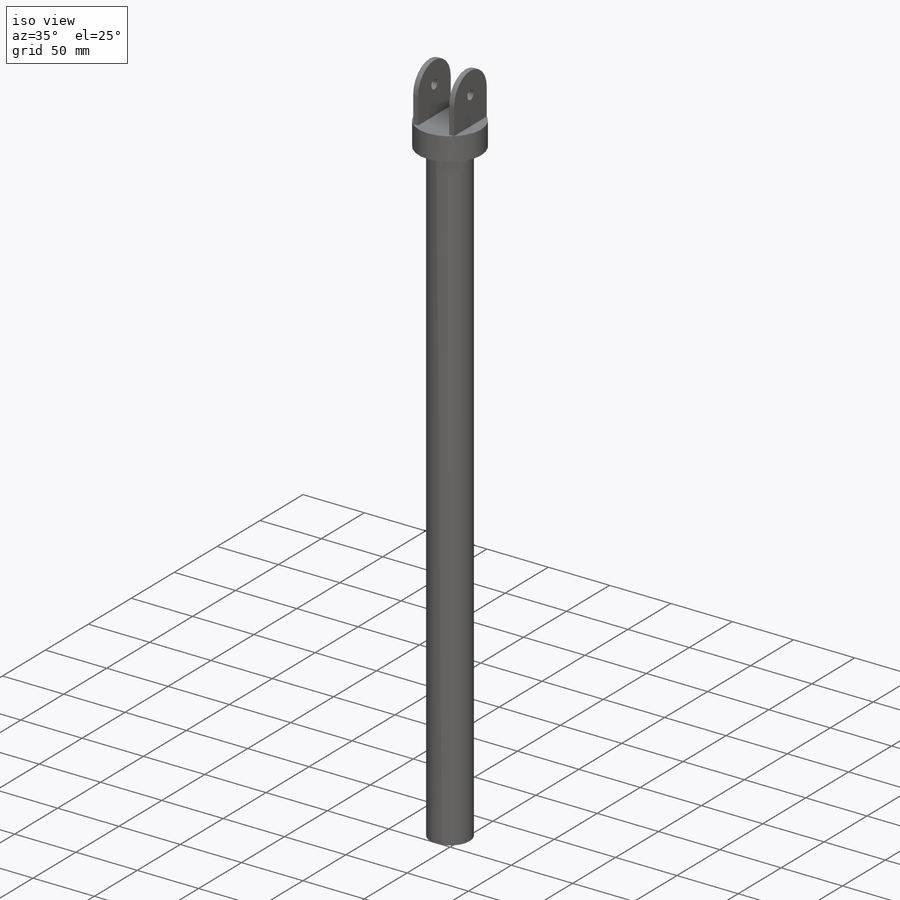
[diagram: iso view]
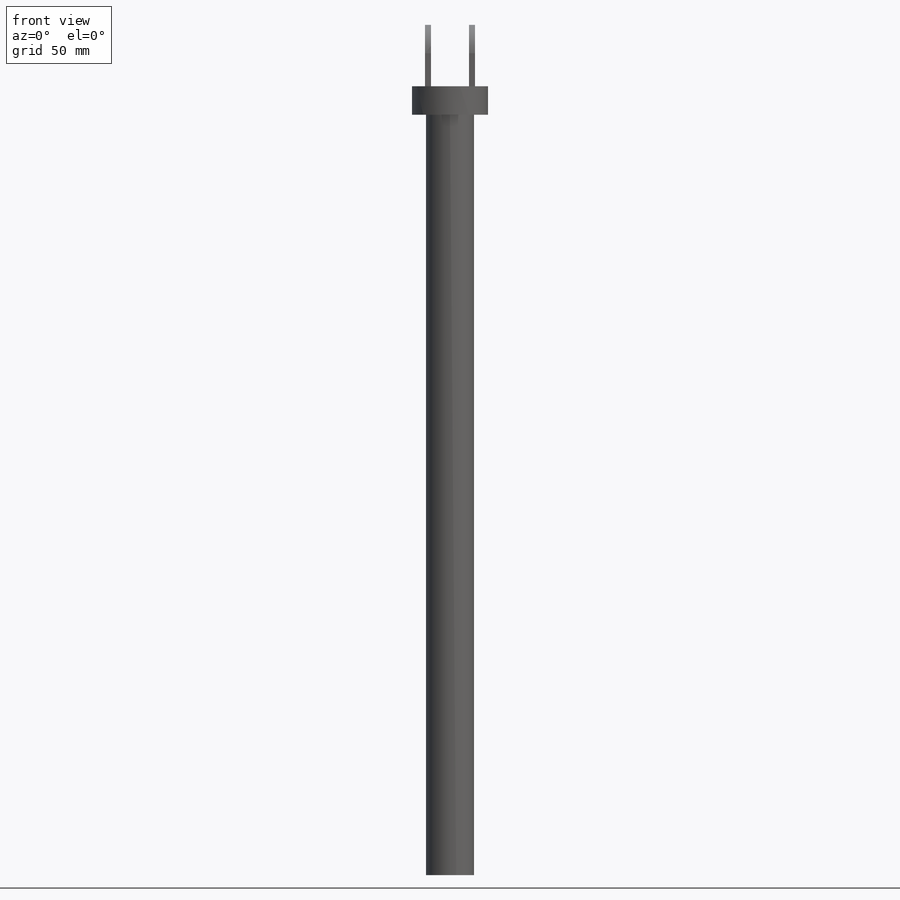
[diagram: front view]
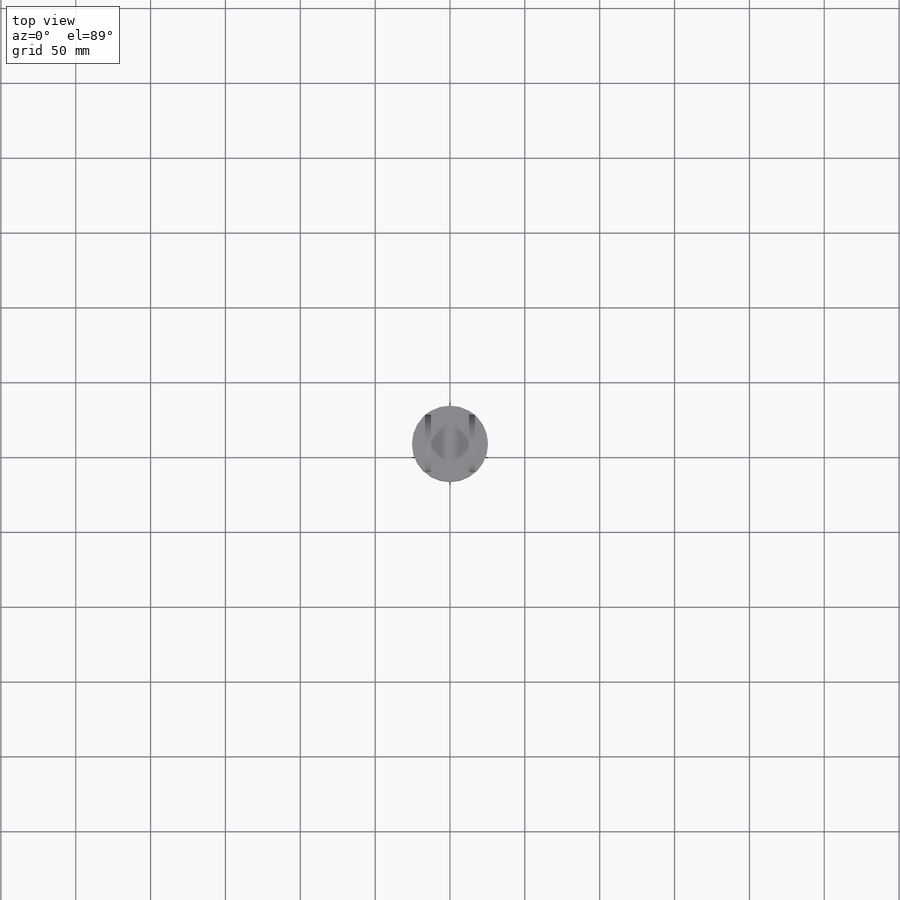
[diagram: top view]
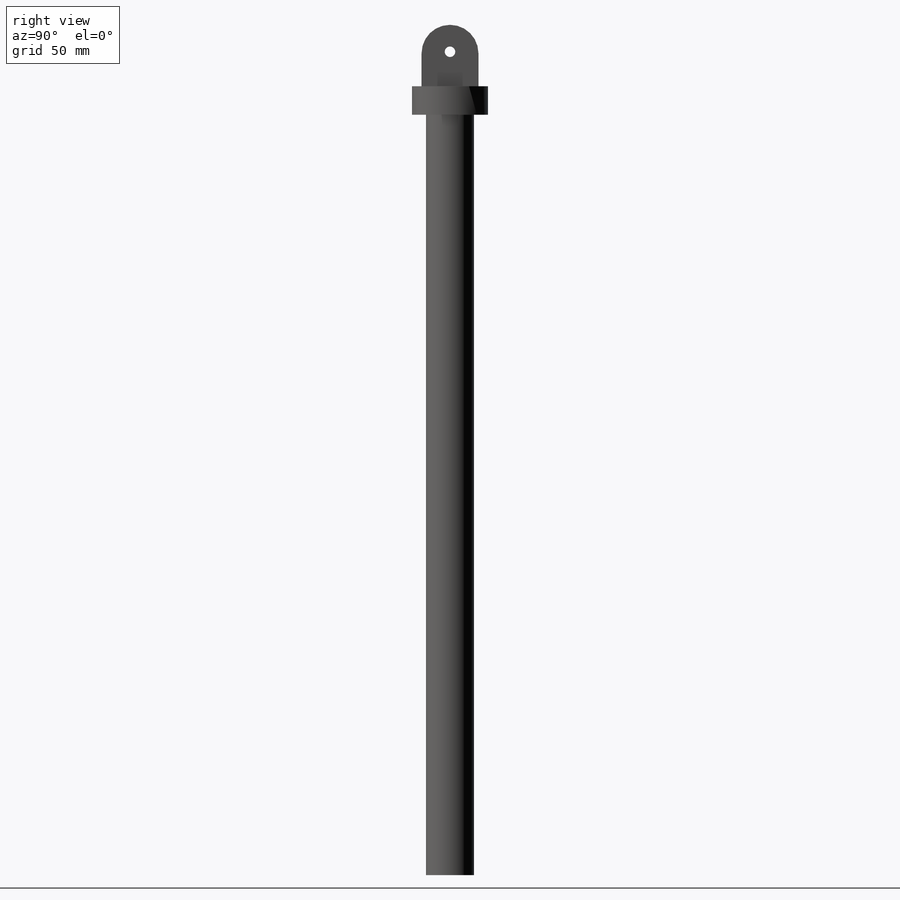
[diagram: right view]
SOLIDWORKS PART (.sldprt)
format: sldprt  version: not decoded by parser v0  size: 152,064 bytes
history: native  units: mm
features: sketch x3, extrude x3, material x1, plane x1, mirror x1 (+13 scaffold rows collapsed)
feature tree (22):
  scaffold x13  (default folders/planes/origin — collapsed)
  material  "Material <not specified>"
  sketch  "Sketch1"  dims[D1=50.8mm]
  extrude  "Boss-Extrude1"  Depth=19.05mm
  plane  "Plane1"  Offset=12.7mm
  sketch  "Sketch2"  dims[c1.D1=~22.86862mm c1.D4=7.0mm c2.D1=41.0mm c2.D2=23.0mm c2.D3=41.0mm c3.D1=~18.13138mm c3.D4=~45.737239mm c3.D5=38.0mm]
  extrude  "Boss-Extrude2"  Depth=4mm
  mirror  "Mirror1"
  sketch  "Sketch3"  dims[D1=32.0mm]
  extrude  "Boss-Extrude3"  Depth=508mm
decode coverage: 6 of 7 modeling features carry decoded parameters
note: ~ marks probable driven/reference dimensions
note: suppression state not decoded; provenance and decode notes live in map.json
